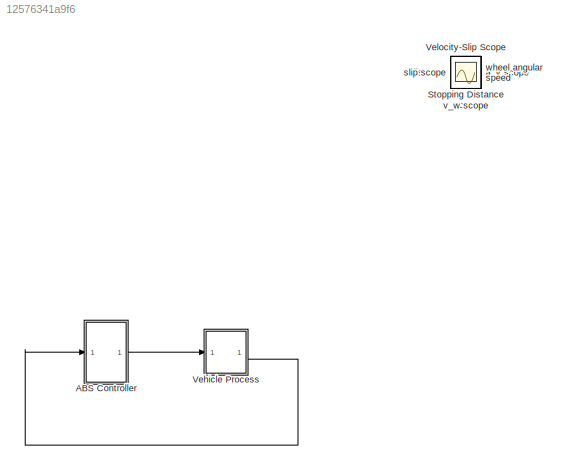
MODEL slx_12576341a9f6
KIND model
CONFIG AbsTol = auto
CONFIG EnableMultiTasking = off
CONFIG FixedStep = auto
CONFIG MaxStep = auto
CONFIG MinStep = auto
CONFIG RelTol = 1e-3
CONFIG SampleTimeConstraint = Unconstrained
CONFIG SolverName = VariableStepAuto
CONFIG StartTime = 0.0
CONFIG StopTime = 3
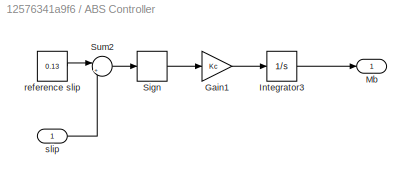
BLOCK [SubSystem] ABS Controller
BLOCK [Gain] ABS Controller/Gain1
  Gain = Kc
BLOCK [Integrator] ABS Controller/Integrator3
  LimitOutput = on
  LowerSaturationLimit = 0
  ZeroCross = off
BLOCK [Outport] ABS Controller/Mb
BLOCK [Signum] ABS Controller/Sign
BLOCK [Sum] ABS Controller/Sum2
  Inputs = |+-
BLOCK [Constant] ABS Controller/reference slip
  Value = 0.13
BLOCK [Inport] ABS Controller/slip
BLOCK [Scope] Stopping Distance Scope
  Floating = off
  IOType = viewer
  NumInputPorts = 1
  ScopeSpecificationString = Simulink.scopes.TimeScopeBlockCfg('CurrentConfiguration', extmgr.ConfigurationSet(extmgr.Configuration('Core','General UI',true),extmgr.Configuration('Core','Source UI',true),extmgr.Configuration('Sources','WiredSimulink',true,'DataLoggingVariableName','ScopeData4'),extmgr.Configuration('Visuals','Time Domain',true,'SerializedDisplays',{struct('MinYLimReal','-4.50399','MaxYLimReal','40.53592','YLa...<+1414ch>
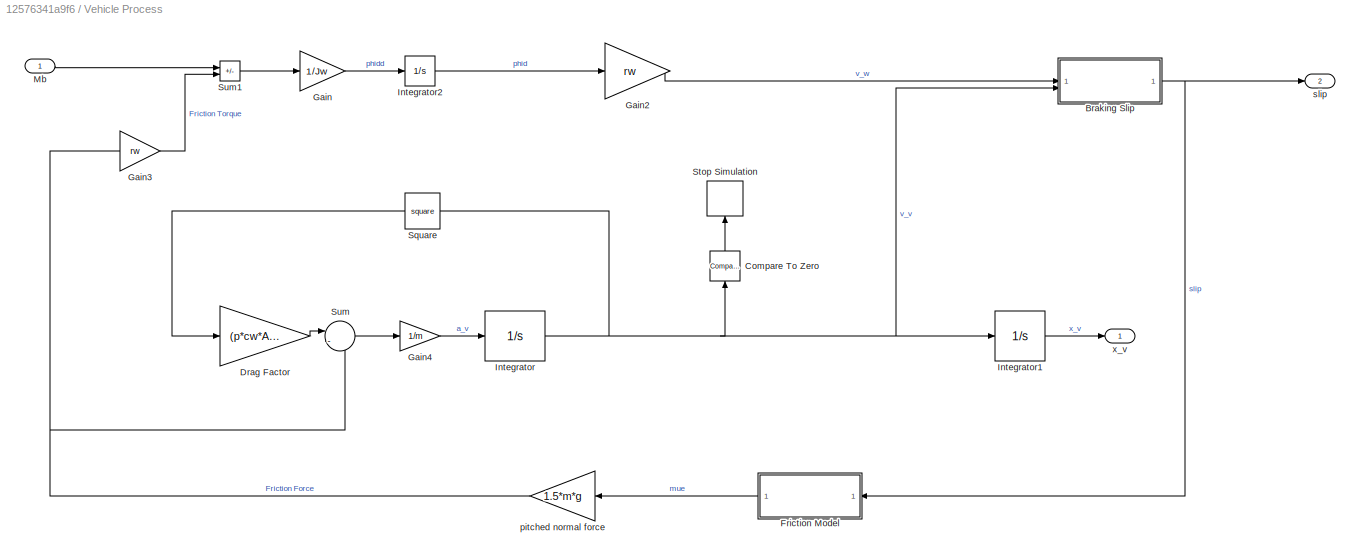
BLOCK [SubSystem] Vehicle Process
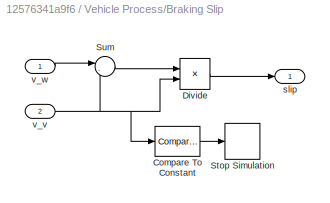
BLOCK [SubSystem] Vehicle Process/Braking Slip
BLOCK [Reference] Vehicle Process/Braking Slip/Compare To Constant  REF=simulink/Logic and Bit
Operations/Compare
To Constant
  SourceBlock = simulink/Logic and Bit\nOperations/Compare\nTo Constant
  SourceType = Compare To Constant
BLOCK [Product] Vehicle Process/Braking Slip/Divide
  Inputs = */
BLOCK [Stop] Vehicle Process/Braking Slip/Stop Simulation
BLOCK [Sum] Vehicle Process/Braking Slip/Sum
  Inputs = |-+
BLOCK [Outport] Vehicle Process/Braking Slip/slip
BLOCK [Inport] Vehicle Process/Braking Slip/v_v
  Port = 2
BLOCK [Inport] Vehicle Process/Braking Slip/v_w
BLOCK [Reference] Vehicle Process/Compare To Zero  REF=simulink/Logic and Bit
Operations/Compare
To Zero
  NameLocation = right
  SourceBlock = simulink/Logic and Bit\nOperations/Compare\nTo Zero
  SourceType = Compare To Zero
BLOCK [Gain] Vehicle Process/Drag Factor
  Gain = (p*cw*A)/(2)
  NameLocation = top
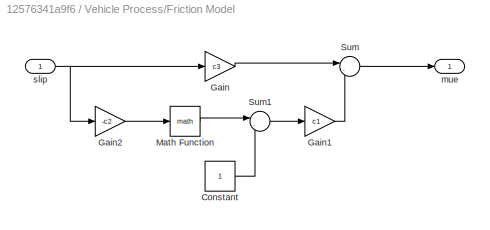
BLOCK [SubSystem] Vehicle Process/Friction Model
  NameLocation = top
BLOCK [Constant] Vehicle Process/Friction Model/Constant
BLOCK [Gain] Vehicle Process/Friction Model/Gain
  Gain = c3
BLOCK [Gain] Vehicle Process/Friction Model/Gain1
  Gain = c1
BLOCK [Gain] Vehicle Process/Friction Model/Gain2
  Gain = -c2
BLOCK [Math] Vehicle Process/Friction Model/Math Function
BLOCK [Sum] Vehicle Process/Friction Model/Sum
  Inputs = |-+
BLOCK [Sum] Vehicle Process/Friction Model/Sum1
  Inputs = |-+
BLOCK [Outport] Vehicle Process/Friction Model/mue
BLOCK [Inport] Vehicle Process/Friction Model/slip
BLOCK [Gain] Vehicle Process/Gain
  Gain = 1/Jw
BLOCK [Gain] Vehicle Process/Gain2
  Gain = rw
BLOCK [Gain] Vehicle Process/Gain3
  Gain = rw
  NameLocation = top
BLOCK [Gain] Vehicle Process/Gain4
  Gain = 1/m
BLOCK [Integrator] Vehicle Process/Integrator
  InitialCondition = v0
  LimitOutput = on
  LowerSaturationLimit = 0
BLOCK [Integrator] Vehicle Process/Integrator1
  LimitOutput = on
  LowerSaturationLimit = 0
BLOCK [Integrator] Vehicle Process/Integrator2
  InitialCondition = v0/rw
  LimitOutput = on
  LowerSaturationLimit = 0
BLOCK [Inport] Vehicle Process/Mb
BLOCK [Math] Vehicle Process/Square
  NameLocation = top
  Operator = square
BLOCK [Stop] Vehicle Process/Stop Simulation
  NameLocation = right
BLOCK [Sum] Vehicle Process/Sum
  Inputs = |--
BLOCK [Sum] Vehicle Process/Sum1
  IconShape = rectangular
  Inputs = -+
BLOCK [Gain] Vehicle Process/pitched normal force
  Gain = 1.5*m*g
  NameLocation = top
BLOCK [Outport] Vehicle Process/slip
  Port = 2
BLOCK [Outport] Vehicle Process/x_v
BLOCK [Scope] Velocity-Slip Scope
  Floating = off
  IOType = viewer
  NumInputPorts = 1
  ScopeSpecificationString = Simulink.scopes.TimeScopeBlockCfg('CurrentConfiguration', extmgr.ConfigurationSet(extmgr.Configuration('Core','General UI',true),extmgr.Configuration('Core','Source UI',true),extmgr.Configuration('Sources','WiredSimulink',true,'DataLoggingVariableName','ScopeData5'),extmgr.Configuration('Visuals','Time Domain',true,'SerializedDisplays',{struct('MinYLimReal','-3.47222','MaxYLimReal','31.25','YLabel...<+1382ch>
BLOCK [Scope] a_v scope
  Floating = off
  IOType = viewer
  NumInputPorts = 1
  ScopeSpecificationString = Simulink.scopes.TimeScopeBlockCfg('CurrentConfiguration', extmgr.ConfigurationSet(extmgr.Configuration('Core','General UI',true),extmgr.Configuration('Core','Source UI',true),extmgr.Configuration('Sources','WiredSimulink',true,'DataLoggingVariableName','ScopeData1'),extmgr.Configuration('Visuals','Time Domain',true,'SerializedDisplays',{struct('MinYLimReal','-13.44546','MaxYLimReal','1.28818','YLa...<+1395ch>
BLOCK [Scope] distance
  Floating = off
  IOType = viewer
  NumInputPorts = 1
  ScopeSpecificationString = Simulink.scopes.TimeScopeBlockCfg('CurrentConfiguration', extmgr.ConfigurationSet(extmgr.Configuration('Core','General UI',true),extmgr.Configuration('Core','Source UI',true),extmgr.Configuration('Sources','WiredSimulink',true,'DataLoggingVariableName','ScopeData3'),extmgr.Configuration('Visuals','Time Domain',true,'SerializedDisplays',{struct('MinYLimReal','-3.46097','MaxYLimReal','31.24875','YLa...<+1390ch>
BLOCK [Scope] slip scope
  Floating = off
  IOType = viewer
  NumInputPorts = 1
  ScopeSpecificationString = Simulink.scopes.TimeScopeBlockCfg('CurrentConfiguration', extmgr.ConfigurationSet(extmgr.Configuration('Core','General UI',true),extmgr.Configuration('Core','Source UI',true),extmgr.Configuration('Sources','WiredSimulink',true,'DataLoggingVariableName','ScopeData4'),extmgr.Configuration('Visuals','Time Domain',true,'SerializedDisplays',{struct('MinYLimReal','-0.125','MaxYLimReal','1.125','YLabelRe...<+1429ch>
BLOCK [Scope] v_w scope
  Floating = off
  IOType = viewer
  NumInputPorts = 1
  ScopeSpecificationString = Simulink.scopes.TimeScopeBlockCfg('CurrentConfiguration', extmgr.ConfigurationSet(extmgr.Configuration('Core','General UI',true),extmgr.Configuration('Core','Source UI',true),extmgr.Configuration('Sources','WiredSimulink',true,'DataLoggingVariableName','ScopeData2'),extmgr.Configuration('Visuals','Time Domain',true,'SerializedDisplays',{struct('MinYLimReal','17.15126','MaxYLimReal','17.35282','YLa...<+1413ch>
BLOCK [Scope] wheel angular speed
  Floating = off
  IOType = viewer
  NumInputPorts = 1
  ScopeSpecificationString = Simulink.scopes.TimeScopeBlockCfg('CurrentConfiguration', extmgr.ConfigurationSet(extmgr.Configuration('Core','General UI',true),extmgr.Configuration('Core','Source UI',true),extmgr.Configuration('Sources','WiredSimulink',true,'DataLoggingVariableName','ScopeData2'),extmgr.Configuration('Visuals','Time Domain',true,'SerializedDisplays',{struct('MinYLimReal','-11.57407','MaxYLimReal','104.16667','Y...<+1472ch>
LINE ABS Controller/Gain1:1 -> ABS Controller/Integrator3:1
LINE ABS Controller/Integrator3:1 -> ABS Controller/Mb:1
LINE ABS Controller/Sign:1 -> ABS Controller/Gain1:1
LINE ABS Controller/Sum2:1 -> ABS Controller/Sign:1
LINE ABS Controller/reference slip:1 -> ABS Controller/Sum2:1
LINE ABS Controller/slip:1 -> ABS Controller/Sum2:2
LINE ABS Controller:1 -> Vehicle Process:1
LINE Vehicle Process/Braking Slip/Compare To Constant:1 -> Vehicle Process/Braking Slip/Stop Simulation:1
LINE Vehicle Process/Braking Slip/Divide:1 -> Vehicle Process/Braking Slip/slip:1
LINE Vehicle Process/Braking Slip/Sum:1 -> Vehicle Process/Braking Slip/Divide:1
NET Vehicle Process/Braking Slip/v_v:1 -> Vehicle Process/Braking Slip/Compare To Constant:1, Vehicle Process/Braking Slip/Divide:2, Vehicle Process/Braking Slip/Sum:2
LINE Vehicle Process/Braking Slip/v_w:1 -> Vehicle Process/Braking Slip/Sum:1
NET Vehicle Process/Braking Slip:1 -> Vehicle Process/Friction Model:1, Vehicle Process/slip:1
LINE Vehicle Process/Compare To Zero:1 -> Vehicle Process/Stop Simulation:1
LINE Vehicle Process/Drag Factor:1 -> Vehicle Process/Sum:1
LINE Vehicle Process/Friction Model/Constant:1 -> Vehicle Process/Friction Model/Sum1:2
LINE Vehicle Process/Friction Model/Gain1:1 -> Vehicle Process/Friction Model/Sum:2
LINE Vehicle Process/Friction Model/Gain2:1 -> Vehicle Process/Friction Model/Math Function:1
LINE Vehicle Process/Friction Model/Gain:1 -> Vehicle Process/Friction Model/Sum:1
LINE Vehicle Process/Friction Model/Math Function:1 -> Vehicle Process/Friction Model/Sum1:1
LINE Vehicle Process/Friction Model/Sum1:1 -> Vehicle Process/Friction Model/Gain1:1
LINE Vehicle Process/Friction Model/Sum:1 -> Vehicle Process/Friction Model/mue:1
NET Vehicle Process/Friction Model/slip:1 -> Vehicle Process/Friction Model/Gain2:1, Vehicle Process/Friction Model/Gain:1
LINE Vehicle Process/Friction Model:1 -> Vehicle Process/pitched normal force:1
LINE Vehicle Process/Gain2:1 -> Vehicle Process/Braking Slip:1
LINE Vehicle Process/Gain3:1 -> Vehicle Process/Sum1:2
LINE Vehicle Process/Gain4:1 -> Vehicle Process/Integrator:1
LINE Vehicle Process/Gain:1 -> Vehicle Process/Integrator2:1
LINE Vehicle Process/Integrator1:1 -> Vehicle Process/x_v:1
LINE Vehicle Process/Integrator2:1 -> Vehicle Process/Gain2:1
NET Vehicle Process/Integrator:1 -> Vehicle Process/Braking Slip:2, Vehicle Process/Compare To Zero:1, Vehicle Process/Integrator1:1, Vehicle Process/Square:1
LINE Vehicle Process/Mb:1 -> Vehicle Process/Sum1:1
LINE Vehicle Process/Square:1 -> Vehicle Process/Drag Factor:1
LINE Vehicle Process/Sum1:1 -> Vehicle Process/Gain:1
LINE Vehicle Process/Sum:1 -> Vehicle Process/Gain4:1
NET Vehicle Process/pitched normal force:1 -> Vehicle Process/Gain3:1, Vehicle Process/Sum:2
LINE Vehicle Process:2 -> ABS Controller:1
note: NET lines group one-source signal fan-out (src -> all destinations, sorted); 1:1 wires keep LINE
